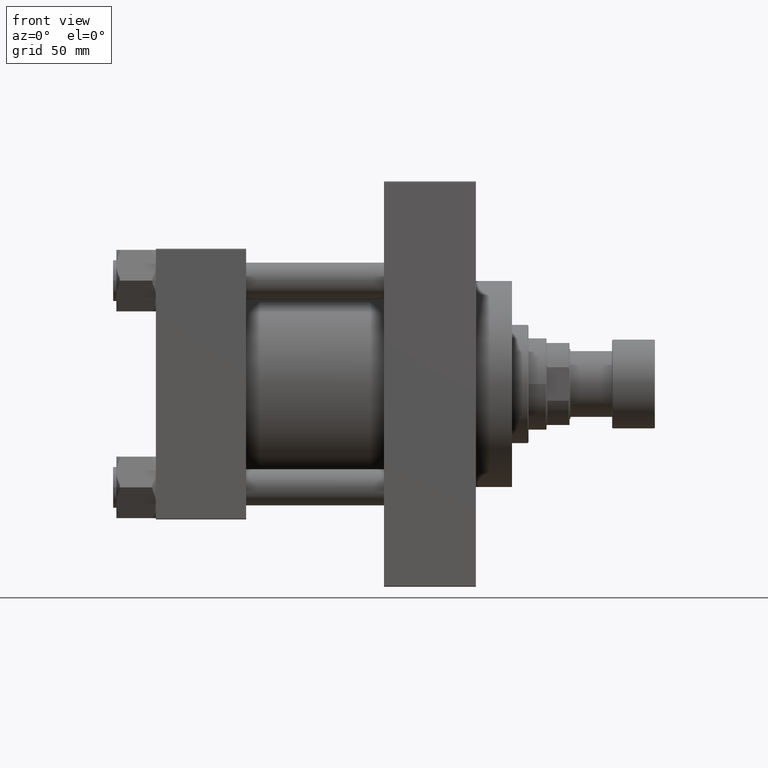
[diagram: clean part render]
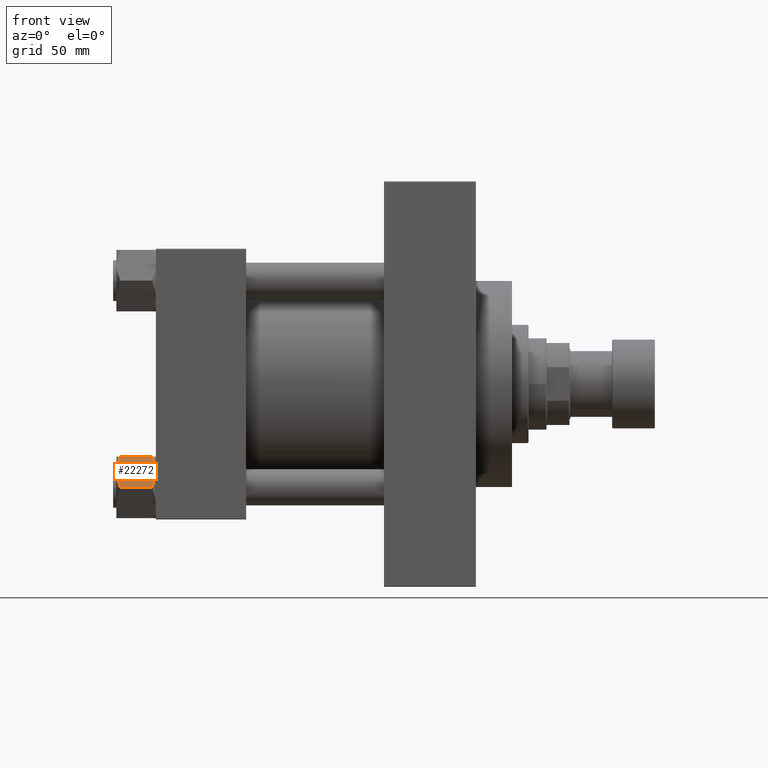
[diagram: same view with one face highlighted and labeled with its STEP entity id]
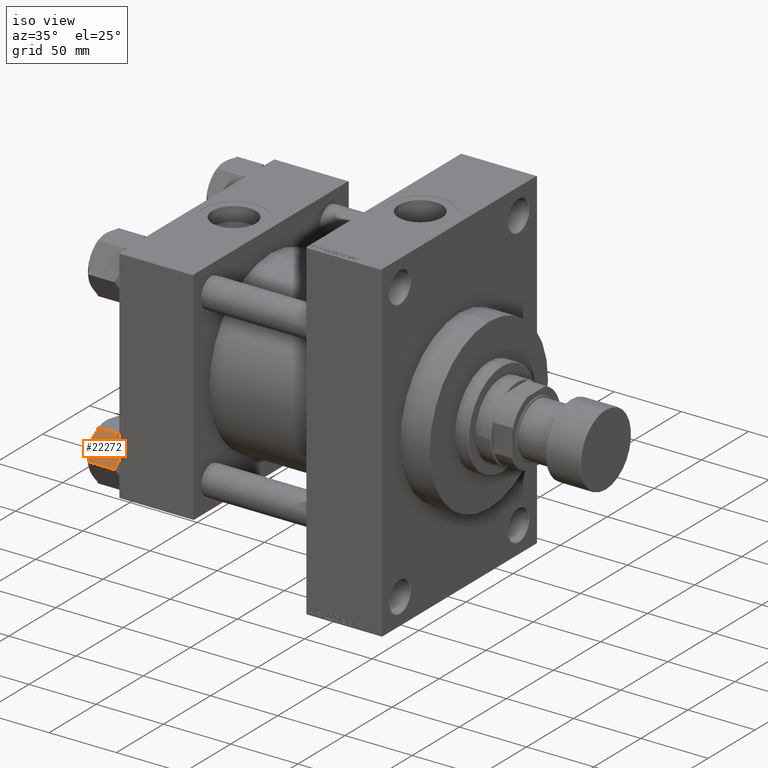
[diagram: same view with one face highlighted and labeled with its STEP entity id]
A machine part, front view. The second image highlights one B-rep face of the part: STEP entity #22272.
A second angle (iso view) of the same face is appended — the face is thin or edge-on in the first view.
In plain terms, the highlighted planar face has unit normal (-0, 0.866, -0.5).
Its self-contained STEP definition (entity closure, byte-faithful):
#533 = LINE ( 'NONE', #19307, #24073 ) ;
#721 = CARTESIAN_POINT ( 'NONE',  ( 14.30978229978948235, 12.66166847115394845, -23.62969313679644756 ) ) ;
#810 = VECTOR ( 'NONE', #38390, 999.9999999999998863 ) ;
#892 = CARTESIAN_POINT ( 'NONE',  ( 10.81000000000000050, 18.72346922981957817, -2.000000000000001776 ) ) ;
#1210 = EDGE_CURVE ( 'NONE', #4124, #26908, #17315, .T. ) ;
#1250 = LINE ( 'NONE', #20242, #18721 ) ;
#1328 = CARTESIAN_POINT ( 'NONE',  ( 14.69400019531146562, 11.99618355493267252, -0.1908188403547868839 ) ) ;
#3927 = ORIENTED_EDGE ( 'NONE', *, *, #46667, .T. ) ;
#4124 = VERTEX_POINT ( 'NONE', #23377 ) ;
#4325 = CARTESIAN_POINT ( 'NONE',  ( 19.94878361794604871, 2.894631684158897933, -1.393668941363769731 ) ) ;
#6314 = B_SPLINE_CURVE_WITH_KNOTS ( 'NONE', 3,
 ( #19191, #4325, #34266, #23076, #45223, #34510, #7737, #22347, #15291, #8217 ),
 .UNSPECIFIED., .F., .F.,
 ( 4, 2, 2, 2, 4 ),
 ( 5.007809737635679592E-07, 0.004555175037830400120, 0.006832512166258719252, 0.007971180730472881421, 0.009109849294687041854 ),
 .UNSPECIFIED. ) ;
#6350 = CARTESIAN_POINT ( 'NONE',  ( 11.77388873931089996, 17.05396496048960131, -22.00000000000000000 ) ) ;
#6701 = LINE ( 'NONE', #21558, #28883 ) ;
#6914 = FACE_OUTER_BOUND ( 'NONE', #16930, .T. ) ;
#7737 = CARTESIAN_POINT ( 'NONE',  ( 16.98598932500589243, 8.026341931906367577, -0.05945867712356229379 ) ) ;
#8081 = VERTEX_POINT ( 'NONE', #13763 ) ;
#8217 = CARTESIAN_POINT ( 'NONE',  ( 16.21500000000001052, 9.361734614909781982, 0.000000000000000000 ) ) ;
#8684 = CARTESIAN_POINT ( 'NONE',  ( 10.81000000000000227, 18.72346922981957817, -2.000000000000001776 ) ) ;
#10220 = EDGE_CURVE ( 'NONE', #16865, #4124, #13834, .T. ) ;
#10859 = LINE ( 'NONE', #14517, #38744 ) ;
#10872 = ORIENTED_EDGE ( 'NONE', *, *, #34827, .F. ) ;
#11444 = CARTESIAN_POINT ( 'NONE',  ( 20.65611126068912640, 1.669504269329968427, -22.00000000000000000 ) ) ;
#11448 = CARTESIAN_POINT ( 'NONE',  ( 13.20154625327794484, 14.58118961049119022, -23.10638014572221266 ) ) ;
#12035 = ORIENTED_EDGE ( 'NONE', *, *, #36153, .F. ) ;
#12167 = CARTESIAN_POINT ( 'NONE',  ( 17.73599980468855009, 6.727285674886885225, -23.80918115964520965 ) ) ;
#12467 = EDGE_CURVE ( 'NONE', #8081, #41104, #10859, .T. ) ;
#12845 = CARTESIAN_POINT ( 'NONE',  ( 11.77388873931089996, 17.05396496048960131, -22.00000000000000000 ) ) ;
#13763 = CARTESIAN_POINT ( 'NONE',  ( 11.77388873931090352, 17.05396496048959776, -2.000000000000000000 ) ) ;
#13834 = B_SPLINE_CURVE_WITH_KNOTS ( 'NONE', 3,
 ( #6350, #15591, #11448, #721, #34075, #26525, #27005, #45034, #18520, #44553 ),
 .UNSPECIFIED., .F., .F.,
 ( 4, 2, 2, 2, 4 ),
 ( 5.007809737605685096E-07, 0.004555175037830401855, 0.006832512166258726191, 0.007971180730472884890, 0.009109849294687045324 ),
 .UNSPECIFIED. ) ;
#13991 = DIRECTION ( 'NONE',  ( -0.8660254037844388186, -0.4999999999999998335, 0.000000000000000000 ) ) ;
#14049 = DIRECTION ( 'NONE',  ( -0.4999999999999998335, 0.8660254037844388186, 0.000000000000000000 ) ) ;
#14196 = VECTOR ( 'NONE', #25376, 999.9999999999998863 ) ;
#14465 = CARTESIAN_POINT ( 'NONE',  ( 10.81000000000000227, 18.72346922981957817, -24.00000000000000000 ) ) ;
#14517 = CARTESIAN_POINT ( 'NONE',  ( 10.81000000000000227, 18.72346922981957817, -2.000000000000001776 ) ) ;
#15291 = CARTESIAN_POINT ( 'NONE',  ( 16.40715167818695619, 9.028918145530347772, 4.370219433972603677E-15 ) ) ;
#15591 = CARTESIAN_POINT ( 'NONE',  ( 12.48121638205397055, 15.82883754566066514, -22.60633105863622916 ) ) ;
#16177 = EDGE_CURVE ( 'NONE', #38657, #8081, #27366, .T. ) ;
#16865 = VERTEX_POINT ( 'NONE', #12845 ) ;
#16930 = EDGE_LOOP ( 'NONE', ( #37456, #3927, #39155, #25537, #17467, #32831, #10872, #12035, #28367, #28127 ) ) ;
#17194 = CARTESIAN_POINT ( 'NONE',  ( 21.62000000000000810, -3.114209406997181913E-15, -22.00000000000000000 ) ) ;
#17315 = B_SPLINE_CURVE_WITH_KNOTS ( 'NONE', 3,
 ( #19725, #45507, #12167, #27000, #41859, #23368, #45029, #11444 ),
 .UNSPECIFIED., .F., .F.,
 ( 4, 2, 2, 4 ),
 ( 0.009109849294687045324, 0.01366157320126712080, 0.01593743515455715853, 0.01821329710784719627 ),
 .UNSPECIFIED. ) ;
#17467 = ORIENTED_EDGE ( 'NONE', *, *, #47146, .F. ) ;
#17863 = CARTESIAN_POINT ( 'NONE',  ( 12.12795923008834009, 16.44069688100221782, -1.696485868030855881 ) ) ;
#18348 = DIRECTION ( 'NONE',  ( 0.4999999999999997780, -0.8660254037844387076, 0.000000000000000000 ) ) ;
#18520 = CARTESIAN_POINT ( 'NONE',  ( 16.02284832181305418, 9.694551084289217968, -24.00000000000000355 ) ) ;
#18721 = VECTOR ( 'NONE', #30470, 999.9999999999998863 ) ;
#19191 = CARTESIAN_POINT ( 'NONE',  ( 20.65611126068912284, 1.669504269329972868, -2.000000000000000000 ) ) ;
#19307 = CARTESIAN_POINT ( 'NONE',  ( 10.81000000000000227, 18.72346922981957817, -24.00000000000000000 ) ) ;
#19725 = CARTESIAN_POINT ( 'NONE',  ( 16.21500000000001052, 9.361734614909781982, -24.00000000000000000 ) ) ;
#19847 = CARTESIAN_POINT ( 'NONE',  ( 15.44689116237993254, 10.69213814741042512, 4.238552868060517319E-15 ) ) ;
#20242 = CARTESIAN_POINT ( 'NONE',  ( 10.81000000000000227, 18.72346922981957817, -22.00000000000000000 ) ) ;
#21080 = DIRECTION ( 'NONE',  ( -0.000000000000000000, -0.000000000000000000, 1.000000000000000000 ) ) ;
#21558 = CARTESIAN_POINT ( 'NONE',  ( 21.62000000000000810, -3.114209406997181913E-15, -24.00000000000000000 ) ) ;
#22272 = ADVANCED_FACE ( 'NONE', ( #6914 ), #25639, .F. ) ;
#22347 = CARTESIAN_POINT ( 'NONE',  ( 16.60104632518793366, 8.693082765609045026, -0.01197337667082005834 ) ) ;
#22419 = CARTESIAN_POINT ( 'NONE',  ( 10.81000000000000050, 18.72346922981957817, -22.00000000000000000 ) ) ;
#22876 = CARTESIAN_POINT ( 'NONE',  ( 16.21500000000001052, 9.361734614909781982, 0.000000000000000000 ) ) ;
#23076 = CARTESIAN_POINT ( 'NONE',  ( 18.12021770021053868, 6.061800758665617295, -0.3703068632035608765 ) ) ;
#23368 = CARTESIAN_POINT ( 'NONE',  ( 19.94246781890515763, 2.905570968988116398, -22.58212083167677520 ) ) ;
#23377 = CARTESIAN_POINT ( 'NONE',  ( 16.21500000000001052, 9.361734614909781982, -24.00000000000000000 ) ) ;
#23420 = CARTESIAN_POINT ( 'NONE',  ( 21.62000000000000810, -3.114209406997181913E-15, -2.000000000000001776 ) ) ;
#23499 = CARTESIAN_POINT ( 'NONE',  ( 16.21500000000001052, 9.361734614909781982, 0.000000000000000000 ) ) ;
#24073 = VECTOR ( 'NONE', #26824, 1000.000000000000000 ) ;
#25376 = DIRECTION ( 'NONE',  ( 0.4999999999999998335, -0.8660254037844388186, 0.000000000000000000 ) ) ;
#25378 = CARTESIAN_POINT ( 'NONE',  ( 12.48753218109486163, 15.81789826083144668, -1.417879168323222583 ) ) ;
#25537 = ORIENTED_EDGE ( 'NONE', *, *, #16177, .F. ) ;
#25623 = CARTESIAN_POINT ( 'NONE',  ( 13.21634051119549902, 14.55556520411771615, -0.9250850388960966120 ) ) ;
#25639 = PLANE ( 'NONE',  #33268 ) ;
#26525 = CARTESIAN_POINT ( 'NONE',  ( 15.25296234352183333, 11.02803271472448365, -23.90516550165011722 ) ) ;
#26824 = DIRECTION ( 'NONE',  ( -0.000000000000000000, -0.000000000000000000, 1.000000000000000000 ) ) ;
#26908 = VERTEX_POINT ( 'NONE', #43855 ) ;
#27000 = CARTESIAN_POINT ( 'NONE',  ( 18.84657086838734941, 4.803720167144760467, -23.28765129395945266 ) ) ;
#27005 = CARTESIAN_POINT ( 'NONE',  ( 15.44401067499412683, 10.69712729791320349, -23.94054132287644165 ) ) ;
#27366 = B_SPLINE_CURVE_WITH_KNOTS ( 'NONE', 3,
 ( #23499, #19847, #1328, #27376, #25623, #25378, #17863, #46828 ),
 .UNSPECIFIED., .F., .F.,
 ( 4, 2, 2, 4 ),
 ( 0.009109849294687041854, 0.01366157320126711386, 0.01593743515455714813, 0.01821329710784718586 ),
 .UNSPECIFIED. ) ;
#27376 = CARTESIAN_POINT ( 'NONE',  ( 13.58342913161267163, 13.91974906267479639, -0.7123487060405462312 ) ) ;
#28127 = ORIENTED_EDGE ( 'NONE', *, *, #10220, .F. ) ;
#28367 = ORIENTED_EDGE ( 'NONE', *, *, #1210, .F. ) ;
#28883 = VECTOR ( 'NONE', #21080, 1000.000000000000000 ) ;
#29316 = VERTEX_POINT ( 'NONE', #17194 ) ;
#30470 = DIRECTION ( 'NONE',  ( 0.4999999999999998335, -0.8660254037844388186, 0.000000000000000000 ) ) ;
#32159 = EDGE_CURVE ( 'NONE', #37272, #16865, #1250, .T. ) ;
#32173 = VERTEX_POINT ( 'NONE', #23420 ) ;
#32641 = EDGE_CURVE ( 'NONE', #32173, #40219, #42040, .T. ) ;
#32831 = ORIENTED_EDGE ( 'NONE', *, *, #32641, .F. ) ;
#33268 = AXIS2_PLACEMENT_3D ( 'NONE', #14465, #13991, #18348 ) ;
#34075 = CARTESIAN_POINT ( 'NONE',  ( 14.68383736039111298, 12.01378610136367264, -23.76617792281661323 ) ) ;
#34266 = CARTESIAN_POINT ( 'NONE',  ( 19.22845374672207086, 4.142279619328373741, -0.8936198542777834541 ) ) ;
#34510 = CARTESIAN_POINT ( 'NONE',  ( 17.17703765647818770, 7.695436515095090968, -0.09483449834988741389 ) ) ;
#34827 = EDGE_CURVE ( 'NONE', #29316, #32173, #6701, .T. ) ;
#36153 = EDGE_CURVE ( 'NONE', #26908, #29316, #43899, .T. ) ;
#36396 = CARTESIAN_POINT ( 'NONE',  ( 20.65611126068912284, 1.669504269329972868, -2.000000000000000000 ) ) ;
#36592 = CARTESIAN_POINT ( 'NONE',  ( 10.81000000000000227, 18.72346922981957817, -22.00000000000000000 ) ) ;
#37272 = VERTEX_POINT ( 'NONE', #22419 ) ;
#37456 = ORIENTED_EDGE ( 'NONE', *, *, #32159, .F. ) ;
#38390 = DIRECTION ( 'NONE',  ( -0.4999999999999998335, 0.8660254037844388186, 0.000000000000000000 ) ) ;
#38657 = VERTEX_POINT ( 'NONE', #22876 ) ;
#38744 = VECTOR ( 'NONE', #14049, 999.9999999999998863 ) ;
#39155 = ORIENTED_EDGE ( 'NONE', *, *, #12467, .F. ) ;
#40219 = VERTEX_POINT ( 'NONE', #36396 ) ;
#41104 = VERTEX_POINT ( 'NONE', #892 ) ;
#41859 = CARTESIAN_POINT ( 'NONE',  ( 19.21365948880452379, 4.167904025701849591, -23.07491496110390727 ) ) ;
#42040 = LINE ( 'NONE', #8684, #810 ) ;
#43855 = CARTESIAN_POINT ( 'NONE',  ( 20.65611126068912640, 1.669504269329968427, -22.00000000000000000 ) ) ;
#43899 = LINE ( 'NONE', #36592, #14196 ) ;
#44553 = CARTESIAN_POINT ( 'NONE',  ( 16.21500000000001052, 9.361734614909781982, -24.00000000000000000 ) ) ;
#45029 = CARTESIAN_POINT ( 'NONE',  ( 20.30204076991168094, 2.282772348817346142, -22.30351413196914123 ) ) ;
#45034 = CARTESIAN_POINT ( 'NONE',  ( 15.82895367481208737, 10.03038646421052071, -23.98802662332919056 ) ) ;
#45223 = CARTESIAN_POINT ( 'NONE',  ( 17.74616263960890805, 6.709683128455898427, -0.2338220771833904310 ) ) ;
#45507 = CARTESIAN_POINT ( 'NONE',  ( 16.98310883762008316, 8.031331082409137068, -24.00000000000000711 ) ) ;
#46667 = EDGE_CURVE ( 'NONE', #37272, #41104, #533, .T. ) ;
#46828 = CARTESIAN_POINT ( 'NONE',  ( 11.77388873931090352, 17.05396496048959776, -2.000000000000000000 ) ) ;
#47146 = EDGE_CURVE ( 'NONE', #40219, #38657, #6314, .T. ) ;